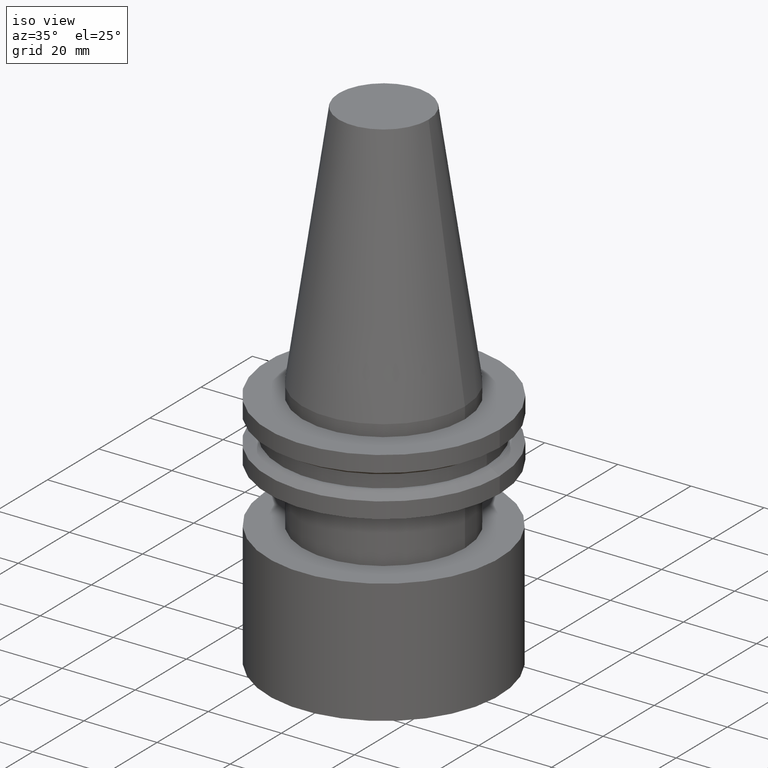
[diagram: clean part render]
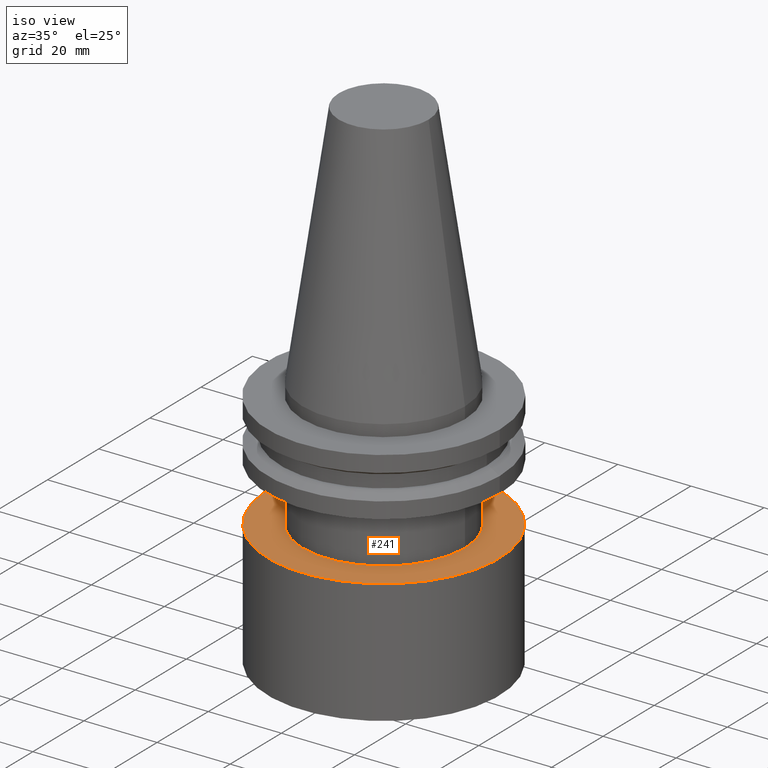
[diagram: same view with one face highlighted and labeled with its STEP entity id]
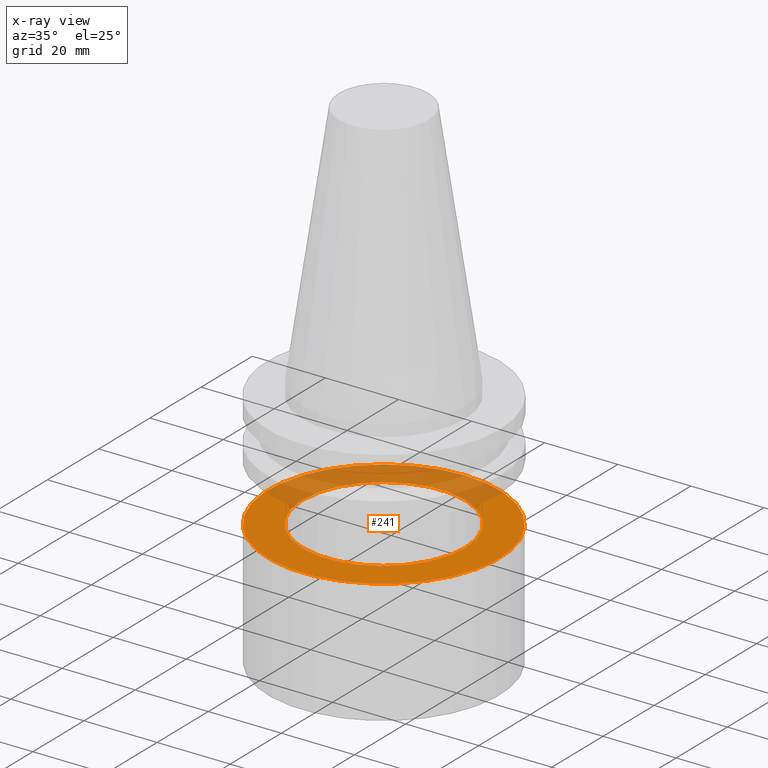
[diagram: x-ray of the same camera — body ghosted, the highlighted face saturated]
A machine part, iso view. The second image highlights one B-rep face of the part: STEP entity #241.
The next image is the same camera in x-ray: the body ghosted, the highlighted face saturated — about 34% of this face is hidden behind the body in this view.
In plain terms, the highlighted planar face has unit normal (0, 0, 1).
Its self-contained STEP definition (entity closure, byte-faithful):
#10 = ORIENTED_EDGE ( 'NONE', *, *, #289, .F. ) ;
#24 = CARTESIAN_POINT ( 'NONE',  ( 0.000000000000000000, 0.000000000000000000, -35.04999999999999716 ) ) ;
#41 = VERTEX_POINT ( 'NONE', #162 ) ;
#50 = CARTESIAN_POINT ( 'NONE',  ( 0.000000000000000000, 1.127050637003671691E-30, -35.04999999999999005 ) ) ;
#58 = ORIENTED_EDGE ( 'NONE', *, *, #240, .F. ) ;
#66 = EDGE_LOOP ( 'NONE', ( #58 ) ) ;
#79 = DIRECTION ( 'NONE',  ( 0.000000000000000000, -1.000000000000000000, 2.669333229363891004E-16 ) ) ;
#88 = VERTEX_POINT ( 'NONE', #327 ) ;
#101 = AXIS2_PLACEMENT_3D ( 'NONE', #24, #175, #391 ) ;
#110 = DIRECTION ( 'NONE',  ( 0.000000000000000000, 1.000000000000000000, -2.193423076942382468E-16 ) ) ;
#162 = CARTESIAN_POINT ( 'NONE',  ( 0.000000000000000000, 31.63500000000000512, -35.04999999999999716 ) ) ;
#175 = DIRECTION ( 'NONE',  ( -0.000000000000000000, -0.000000000000000000, 1.000000000000000000 ) ) ;
#198 = CIRCLE ( 'NONE', #297, 31.63500000000000512 ) ;
#214 = CIRCLE ( 'NONE', #101, 22.22499999999999787 ) ;
#218 = EDGE_LOOP ( 'NONE', ( #10 ) ) ;
#240 = EDGE_CURVE ( 'NONE', #41, #41, #198, .T. ) ;
#241 = ADVANCED_FACE ( 'NONE', ( #393, #328 ), #307, .T. ) ;
#245 = DIRECTION ( 'NONE',  ( 0.000000000000000000, 2.669333229363891004E-16, 1.000000000000000000 ) ) ;
#289 = EDGE_CURVE ( 'NONE', #88, #88, #214, .T. ) ;
#297 = AXIS2_PLACEMENT_3D ( 'NONE', #392, #387, #110 ) ;
#307 = PLANE ( 'NONE',  #389 ) ;
#327 = CARTESIAN_POINT ( 'NONE',  ( 22.22499999999999787, 0.000000000000000000, -35.04999999999999716 ) ) ;
#328 = FACE_OUTER_BOUND ( 'NONE', #66, .T. ) ;
#387 = DIRECTION ( 'NONE',  ( -0.000000000000000000, -2.669333229363891004E-16, -1.000000000000000000 ) ) ;
#389 = AXIS2_PLACEMENT_3D ( 'NONE', #50, #245, #79 ) ;
#391 = DIRECTION ( 'NONE',  ( 1.000000000000000000, 0.000000000000000000, 0.000000000000000000 ) ) ;
#392 = CARTESIAN_POINT ( 'NONE',  ( 0.000000000000000000, 1.540743955509788682E-30, -35.04999999999999005 ) ) ;
#393 = FACE_BOUND ( 'NONE', #218, .T. ) ;